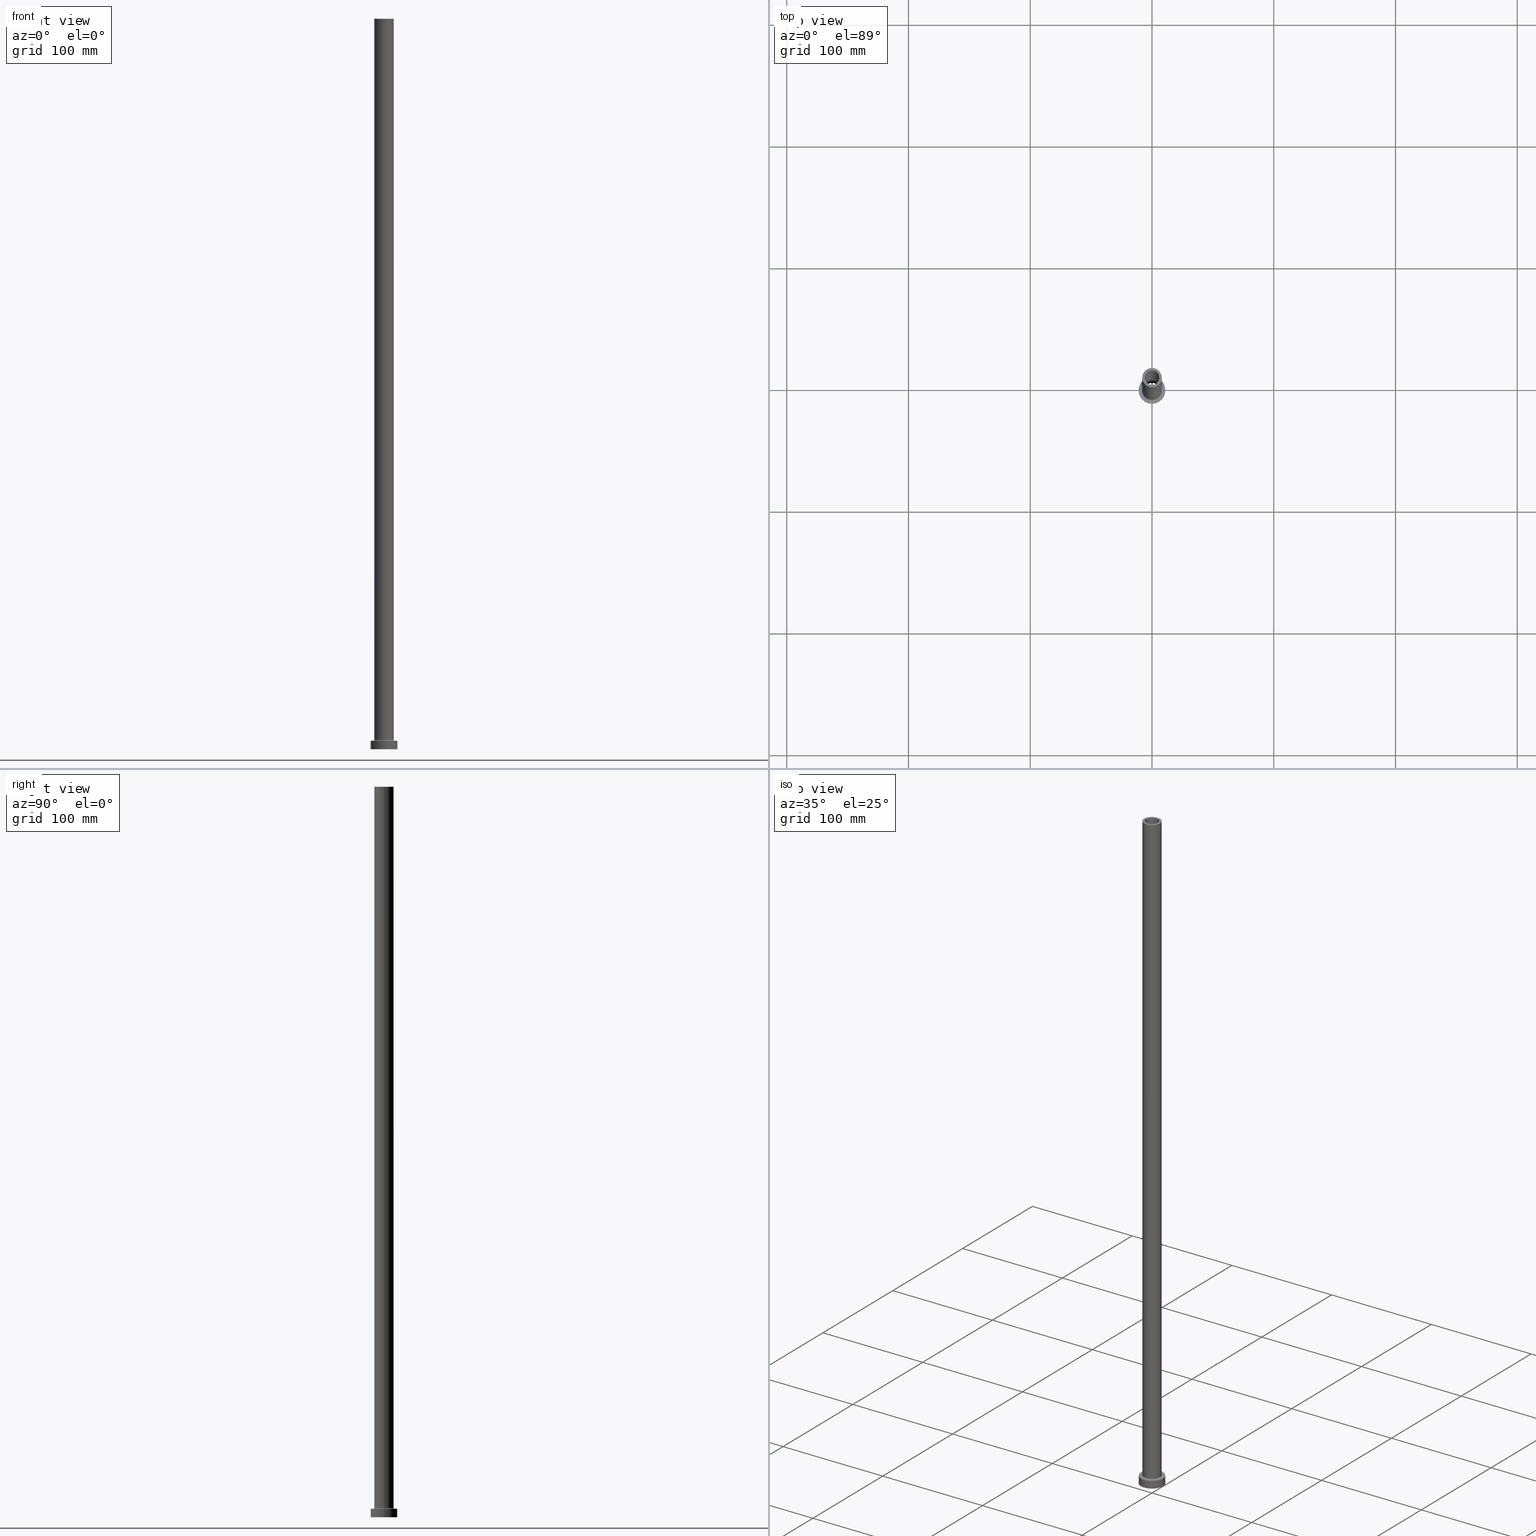
[diagram: canonical four-view strip — front | top / right | iso, engineering-drawing reading convention]
A machine part, canonical four-view strip (front | top / right | iso — engineering-drawing reading convention). The complete STEP part file that produces these views, byte-faithful:
ISO-10303-21;
HEADER;
FILE_DESCRIPTION (( 'STEP AP203' ),
    '1' );
FILE_NAME ('c568.STEP',
    '2023-02-13T09:05:37',
    ( '' ),
    ( '' ),
    'SwSTEP 2.0',
    'SolidWorks 2019',
    '' );
FILE_SCHEMA (( 'CONFIG_CONTROL_DESIGN' ));
ENDSEC;

DATA;
#1 = DIRECTION ( 'NONE',  ( -1.000000000000000000, 1.224646799147353207E-16, 0.000000000000000000 ) ) ;
#2 = FACE_OUTER_BOUND ( 'NONE', #274, .T. ) ;
#3 = DIRECTION ( 'NONE',  ( 1.000000000000000000, 0.000000000000000000, -0.000000000000000000 ) ) ;
#4 = VERTEX_POINT ( 'NONE', #361 ) ;
#5 = ORGANIZATION ( 'NEUR�EN�', 'NEUR�EN�', '' ) ;
#6 = CC_DESIGN_APPROVAL ( #16, ( #281 ) ) ;
#7 = VECTOR ( 'NONE', #116, 1000.000000000000000 ) ;
#8 = PERSON_AND_ORGANIZATION ( #287, #5 ) ;
#9 = ORIENTED_EDGE ( 'NONE', *, *, #111, .T. ) ;
#10 = DIRECTION ( 'NONE',  ( 1.000000000000000000, 0.000000000000000000, 0.000000000000000000 ) ) ;
#11 = DIRECTION ( 'NONE',  ( 0.000000000000000000, 0.000000000000000000, -1.000000000000000000 ) ) ;
#12 = COORDINATED_UNIVERSAL_TIME_OFFSET ( 1, 0, .AHEAD. ) ;
#13 = DIRECTION ( 'NONE',  ( 0.000000000000000000, 0.000000000000000000, -1.000000000000000000 ) ) ;
#14 = VECTOR ( 'NONE', #342, 1000.000000000000000 ) ;
#15 = UNCERTAINTY_MEASURE_WITH_UNIT (LENGTH_MEASURE( 1.000000000000000082E-05 ), #142, 'distance_accuracy_value', 'NONE');
#16 = APPROVAL ( #431, 'NEUR�EN�' ) ;
#17 = MANIFOLD_SOLID_BREP ( 'Odebrat vysunut�m4', #256 ) ;
#18 = CARTESIAN_POINT ( 'NONE',  ( -6.000000000000000888, 0.000000000000000000, 554.9999999999998863 ) ) ;
#19 = CIRCLE ( 'NONE', #211, 6.150000000000000355 ) ;
#20 = CARTESIAN_POINT ( 'NONE',  ( 0.000000000000000000, 0.000000000000000000, 7.000000000000000000 ) ) ;
#21 = APPROVAL_DATE_TIME ( #428, #16 ) ;
#22 = VERTEX_POINT ( 'NONE', #117 ) ;
#23 = AXIS2_PLACEMENT_3D ( 'NONE', #49, #201, #79 ) ;
#24 = ADVANCED_FACE ( 'NONE', ( #263 ), #392, .F. ) ;
#25 = ORIENTED_EDGE ( 'NONE', *, *, #398, .F. ) ;
#26 = DIRECTION ( 'NONE',  ( 1.000000000000000000, 0.000000000000000000, 0.000000000000000000 ) ) ;
#27 = LOCAL_TIME ( 10, 5, 37.00000000000000000, #12 ) ;
#28 = VECTOR ( 'NONE', #11, 1000.000000000000000 ) ;
#29 = EDGE_CURVE ( 'NONE', #4, #44, #319, .T. ) ;
#30 = VERTEX_POINT ( 'NONE', #359 ) ;
#31 = DIRECTION ( 'NONE',  ( -0.000000000000000000, -0.000000000000000000, -1.000000000000000000 ) ) ;
#32 = VERTEX_POINT ( 'NONE', #457 ) ;
#33 = ORIENTED_EDGE ( 'NONE', *, *, #216, .T. ) ;
#34 = TOROIDAL_SURFACE ( 'NONE', #321, 8.699999999999999289, 0.6999999999999999556 ) ;
#35 = DIRECTION ( 'NONE',  ( 0.000000000000000000, 0.000000000000000000, 1.000000000000000000 ) ) ;
#36 = CARTESIAN_POINT ( 'NONE',  ( -6.000000000000000888, 0.000000000000000000, 600.0000000000000000 ) ) ;
#37 = ORIENTED_EDGE ( 'NONE', *, *, #312, .T. ) ;
#38 = PLANE ( 'NONE',  #354 ) ;
#39 = ORIENTED_EDGE ( 'NONE', *, *, #379, .F. ) ;
#40 = LINE ( 'NONE', #120, #28 ) ;
#41 = APPROVAL_ROLE ( '' ) ;
#42 = CIRCLE ( 'NONE', #250, 6.000000000000000888 ) ;
#43 = ORIENTED_EDGE ( 'NONE', *, *, #182, .F. ) ;
#44 = VERTEX_POINT ( 'NONE', #395 ) ;
#45 = DIRECTION ( 'NONE',  ( 1.000000000000000000, 0.000000000000000000, 0.000000000000000000 ) ) ;
#46 = APPROVAL_STATUS ( 'not_yet_approved' ) ;
#47 = SECURITY_CLASSIFICATION ( '', '', #278 ) ;
#48 = CIRCLE ( 'NONE', #280, 8.000000000000000000 ) ;
#49 = CARTESIAN_POINT ( 'NONE',  ( 0.000000000000000000, 0.000000000000000000, 7.700000000000040146 ) ) ;
#50 = DIRECTION ( 'NONE',  ( 1.000000000000000000, 0.000000000000000000, 0.000000000000000000 ) ) ;
#51 = FACE_OUTER_BOUND ( 'NONE', #397, .T. ) ;
#52 = APPLICATION_PROTOCOL_DEFINITION ( 'international standard', 'config_control_design', 1994, #416 ) ;
#53 = EDGE_CURVE ( 'NONE', #30, #298, #19, .T. ) ;
#54 = CYLINDRICAL_SURFACE ( 'NONE', #437, 11.00000000000000000 ) ;
#55 = AXIS2_PLACEMENT_3D ( 'NONE', #151, #127, #277 ) ;
#56 = APPROVAL ( #291, 'NEUR�EN�' ) ;
#57 = DIRECTION ( 'NONE',  ( 1.000000000000000000, 0.000000000000000000, 0.000000000000000000 ) ) ;
#58 = ORIENTED_EDGE ( 'NONE', *, *, #209, .T. ) ;
#59 = CIRCLE ( 'NONE', #146, 6.150000000000000355 ) ;
#60 = CARTESIAN_POINT ( 'NONE',  ( 6.000000000000000888, 7.347880794884120722E-16, 554.9999999999998863 ) ) ;
#61 = DIRECTION ( 'NONE',  ( 0.000000000000000000, 0.000000000000000000, 1.000000000000000000 ) ) ;
#62 = EDGE_CURVE ( 'NONE', #355, #188, #449, .T. ) ;
#63 = ORIENTED_EDGE ( 'NONE', *, *, #379, .T. ) ;
#64 = DIRECTION ( 'NONE',  ( 0.000000000000000000, 0.000000000000000000, -1.000000000000000000 ) ) ;
#65 = AXIS2_PLACEMENT_3D ( 'NONE', #446, #349, #320 ) ;
#66 = ORIENTED_EDGE ( 'NONE', *, *, #450, .T. ) ;
#67 = PERSON_AND_ORGANIZATION_ROLE ( 'creator' ) ;
#68 = DIRECTION ( 'NONE',  ( 0.000000000000000000, 0.000000000000000000, 1.000000000000000000 ) ) ;
#69 = CARTESIAN_POINT ( 'NONE',  ( 0.000000000000000000, 0.000000000000000000, 0.000000000000000000 ) ) ;
#70 = VERTEX_POINT ( 'NONE', #306 ) ;
#71 = PLANE ( 'NONE',  #200 ) ;
#72 = EDGE_CURVE ( 'NONE', #188, #335, #393, .T. ) ;
#73 = CARTESIAN_POINT ( 'NONE',  ( 0.000000000000000000, 0.000000000000000000, 554.9999999999998863 ) ) ;
#74 = CARTESIAN_POINT ( 'NONE',  ( -11.00000000000000000, 0.000000000000000000, 7.000000000000000000 ) ) ;
#75 = ORIENTED_EDGE ( 'NONE', *, *, #353, .F. ) ;
#76 = CARTESIAN_POINT ( 'NONE',  ( 0.000000000000000000, 0.000000000000000000, 554.9999999999998863 ) ) ;
#77 = APPLICATION_CONTEXT ( 'configuration controlled 3d designs of mechanical parts and assemblies' ) ;
#78 = DESIGN_CONTEXT ( 'detailed design', #416, 'design' ) ;
#79 = DIRECTION ( 'NONE',  ( 1.000000000000000000, 0.000000000000000000, 0.000000000000000000 ) ) ;
#80 = VERTEX_POINT ( 'NONE', #18 ) ;
#81 = ORIENTED_EDGE ( 'NONE', *, *, #445, .F. ) ;
#82 = CARTESIAN_POINT ( 'NONE',  ( 0.000000000000000000, 0.000000000000000000, 7.700000000000040146 ) ) ;
#83 = ORIENTED_EDGE ( 'NONE', *, *, #398, .T. ) ;
#84 = ORIENTED_EDGE ( 'NONE', *, *, #182, .T. ) ;
#85 = AXIS2_PLACEMENT_3D ( 'NONE', #210, #99, #26 ) ;
#86 = APPROVAL_PERSON_ORGANIZATION ( #196, #16, #240 ) ;
#87 = TOROIDAL_SURFACE ( 'NONE', #288, 8.699999999999999289, 0.6999999999999999556 ) ;
#88 = ADVANCED_FACE ( 'NONE', ( #317 ), #247, .F. ) ;
#89 = CARTESIAN_POINT ( 'NONE',  ( 0.000000000000000000, 0.000000000000000000, 572.3948268171890277 ) ) ;
#90 = LOCAL_TIME ( 10, 5, 37.00000000000000000, #108 ) ;
#91 = CARTESIAN_POINT ( 'NONE',  ( -11.00000000000000000, 0.000000000000000000, 7.000000000000000000 ) ) ;
#92 = DIRECTION ( 'NONE',  ( 0.000000000000000000, 0.000000000000000000, 1.000000000000000000 ) ) ;
#93 = CC_DESIGN_DATE_AND_TIME_ASSIGNMENT ( #257, #452, ( #281 ) ) ;
#94 = CIRCLE ( 'NONE', #328, 8.699999999999999289 ) ;
#95 = DIRECTION ( 'NONE',  ( 0.000000000000000000, 0.000000000000000000, -1.000000000000000000 ) ) ;
#96 = DIRECTION ( 'NONE',  ( -0.000000000000000000, -0.000000000000000000, -1.000000000000000000 ) ) ;
#97 = CARTESIAN_POINT ( 'NONE',  ( 0.000000000000000000, 0.000000000000000000, 7.000000000000000000 ) ) ;
#98 = AXIS2_PLACEMENT_3D ( 'NONE', #346, #123, #170 ) ;
#99 = DIRECTION ( 'NONE',  ( -0.000000000000000000, -0.000000000000000000, -1.000000000000000000 ) ) ;
#100 = EDGE_CURVE ( 'NONE', #307, #44, #386, .T. ) ;
#101 =( NAMED_UNIT ( * ) PLANE_ANGLE_UNIT ( ) SI_UNIT ( $, .RADIAN. ) );
#102 = ORIENTED_EDGE ( 'NONE', *, *, #72, .F. ) ;
#103 = VECTOR ( 'NONE', #140, 1000.000000000000000 ) ;
#104 = CALENDAR_DATE ( 2023, 13, 2 ) ;
#105 = FACE_OUTER_BOUND ( 'NONE', #313, .T. ) ;
#106 = ORIENTED_EDGE ( 'NONE', *, *, #323, .T. ) ;
#107 = EDGE_LOOP ( 'NONE', ( #453, #338 ) ) ;
#108 = COORDINATED_UNIVERSAL_TIME_OFFSET ( 1, 0, .AHEAD. ) ;
#109 = APPROVAL_DATE_TIME ( #327, #370 ) ;
#110 = ORIENTED_EDGE ( 'NONE', *, *, #304, .T. ) ;
#111 = EDGE_CURVE ( 'NONE', #70, #22, #42, .T. ) ;
#112 = ORIENTED_EDGE ( 'NONE', *, *, #312, .F. ) ;
#113 = ORIENTED_EDGE ( 'NONE', *, *, #366, .T. ) ;
#114 = DIRECTION ( 'NONE',  ( 1.000000000000000000, 0.000000000000000000, 0.000000000000000000 ) ) ;
#115 = EDGE_LOOP ( 'NONE', ( #226, #405, #309, #39 ) ) ;
#116 = DIRECTION ( 'NONE',  ( -0.000000000000000000, -0.000000000000000000, -1.000000000000000000 ) ) ;
#117 = CARTESIAN_POINT ( 'NONE',  ( 6.000000000000000888, 7.347880794884120722E-16, 600.0000000000000000 ) ) ;
#118 = EDGE_LOOP ( 'NONE', ( #394, #75 ) ) ;
#119 = PLANE ( 'NONE',  #456 ) ;
#120 = CARTESIAN_POINT ( 'NONE',  ( -6.150000000000000355, 0.000000000000000000, 572.3948268171890277 ) ) ;
#121 = PERSON_AND_ORGANIZATION ( #287, #5 ) ;
#122 = ORIENTED_EDGE ( 'NONE', *, *, #304, .F. ) ;
#123 = DIRECTION ( 'NONE',  ( 0.000000000000000000, 0.000000000000000000, 1.000000000000000000 ) ) ;
#124 = CARTESIAN_POINT ( 'NONE',  ( 8.000000000000000000, 9.797174393178825657E-16, 600.0000000000000000 ) ) ;
#125 = ORIENTED_EDGE ( 'NONE', *, *, #29, .F. ) ;
#126 = VERTEX_POINT ( 'NONE', #218 ) ;
#127 = DIRECTION ( 'NONE',  ( 0.000000000000000000, 0.000000000000000000, 1.000000000000000000 ) ) ;
#128 = PERSON_AND_ORGANIZATION_ROLE ( 'design_supplier' ) ;
#129 =( GEOMETRIC_REPRESENTATION_CONTEXT ( 3 ) GLOBAL_UNCERTAINTY_ASSIGNED_CONTEXT ( ( #15 ) ) GLOBAL_UNIT_ASSIGNED_CONTEXT ( ( #142, #101, #262 ) ) REPRESENTATION_CONTEXT ( 'NONE', 'WORKASPACE' ) );
#130 = PERSON_AND_ORGANIZATION_ROLE ( 'creator' ) ;
#131 = DIRECTION ( 'NONE',  ( 1.000000000000000000, 0.000000000000000000, 0.000000000000000000 ) ) ;
#132 = EDGE_CURVE ( 'NONE', #22, #341, #173, .T. ) ;
#133 = CARTESIAN_POINT ( 'NONE',  ( 0.000000000000000000, 0.000000000000000000, 600.0000000000000000 ) ) ;
#134 = DIRECTION ( 'NONE',  ( -1.000000000000000000, 0.000000000000000000, 0.000000000000000000 ) ) ;
#135 = CC_DESIGN_APPROVAL ( #370, ( #47 ) ) ;
#136 = AXIS2_PLACEMENT_3D ( 'NONE', #414, #410, #381 ) ;
#137 = ADVANCED_FACE ( 'NONE', ( #441 ), #348, .T. ) ;
#138 = CYLINDRICAL_SURFACE ( 'NONE', #65, 6.000000000000000888 ) ;
#139 = FACE_OUTER_BOUND ( 'NONE', #195, .T. ) ;
#140 = DIRECTION ( 'NONE',  ( 0.000000000000000000, 0.000000000000000000, -1.000000000000000000 ) ) ;
#141 = FACE_BOUND ( 'NONE', #421, .T. ) ;
#142 =( LENGTH_UNIT ( ) NAMED_UNIT ( * ) SI_UNIT ( .MILLI., .METRE. ) );
#143 = FACE_BOUND ( 'NONE', #118, .T. ) ;
#144 = CALENDAR_DATE ( 2023, 13, 2 ) ;
#145 = DIRECTION ( 'NONE',  ( 1.000000000000000000, 0.000000000000000000, 0.000000000000000000 ) ) ;
#146 = AXIS2_PLACEMENT_3D ( 'NONE', #447, #385, #347 ) ;
#147 = VECTOR ( 'NONE', #13, 1000.000000000000000 ) ;
#148 = PERSON_AND_ORGANIZATION ( #287, #5 ) ;
#149 = ORIENTED_EDGE ( 'NONE', *, *, #245, .T. ) ;
#150 = DIRECTION ( 'NONE',  ( 1.000000000000000000, 0.000000000000000000, 0.000000000000000000 ) ) ;
#151 = CARTESIAN_POINT ( 'NONE',  ( 0.000000000000000000, 0.000000000000000000, 7.000000000000000000 ) ) ;
#152 = DIRECTION ( 'NONE',  ( -0.000000000000000000, -0.000000000000000000, -1.000000000000000000 ) ) ;
#153 = CARTESIAN_POINT ( 'NONE',  ( 0.000000000000000000, 0.000000000000000000, 572.3948268171890277 ) ) ;
#154 = EDGE_LOOP ( 'NONE', ( #149, #106 ) ) ;
#155 = DIRECTION ( 'NONE',  ( 0.000000000000000000, 0.000000000000000000, 1.000000000000000000 ) ) ;
#156 = EDGE_CURVE ( 'NONE', #335, #188, #94, .T. ) ;
#157 = COORDINATED_UNIVERSAL_TIME_OFFSET ( 1, 0, .AHEAD. ) ;
#158 = FACE_BOUND ( 'NONE', #174, .T. ) ;
#159 = AXIS2_PLACEMENT_3D ( 'NONE', #89, #336, #246 ) ;
#160 = FACE_OUTER_BOUND ( 'NONE', #235, .T. ) ;
#161 = ORIENTED_EDGE ( 'NONE', *, *, #425, .F. ) ;
#162 = CARTESIAN_POINT ( 'NONE',  ( 0.000000000000000000, 0.000000000000000000, 600.0000000000000000 ) ) ;
#163 = ORIENTED_EDGE ( 'NONE', *, *, #167, .F. ) ;
#164 = CARTESIAN_POINT ( 'NONE',  ( 0.000000000000000000, 0.000000000000000000, 7.700000000000040146 ) ) ;
#165 = CALENDAR_DATE ( 2023, 13, 2 ) ;
#166 = AXIS2_PLACEMENT_3D ( 'NONE', #284, #152, #305 ) ;
#167 = EDGE_CURVE ( 'NONE', #80, #341, #254, .T. ) ;
#168 = CC_DESIGN_SECURITY_CLASSIFICATION ( #47, ( #279 ) ) ;
#169 = AXIS2_PLACEMENT_3D ( 'NONE', #293, #303, #64 ) ;
#170 = DIRECTION ( 'NONE',  ( 1.000000000000000000, 0.000000000000000000, 0.000000000000000000 ) ) ;
#171 = DIRECTION ( 'NONE',  ( -0.000000000000000000, -0.000000000000000000, -1.000000000000000000 ) ) ;
#172 = ADVANCED_FACE ( 'NONE', ( #143, #105 ), #38, .F. ) ;
#173 = LINE ( 'NONE', #448, #103 ) ;
#174 = EDGE_LOOP ( 'NONE', ( #390, #302 ) ) ;
#175 = CARTESIAN_POINT ( 'NONE',  ( 0.000000000000000000, 0.000000000000000000, 600.0000000000000000 ) ) ;
#176 = ADVANCED_FACE ( 'NONE', ( #389 ), #440, .F. ) ;
#177 = FACE_OUTER_BOUND ( 'NONE', #455, .T. ) ;
#178 = FACE_BOUND ( 'NONE', #183, .T. ) ;
#179 = CC_DESIGN_PERSON_AND_ORGANIZATION_ASSIGNMENT ( #121, #128, ( #279 ) ) ;
#180 = ORIENTED_EDGE ( 'NONE', *, *, #255, .T. ) ;
#181 = DIRECTION ( 'NONE',  ( 1.000000000000000000, 0.000000000000000000, 0.000000000000000000 ) ) ;
#182 = EDGE_CURVE ( 'NONE', #44, #4, #454, .T. ) ;
#183 = EDGE_LOOP ( 'NONE', ( #331, #234 ) ) ;
#184 = AXIS2_PLACEMENT_3D ( 'NONE', #372, #310, #50 ) ;
#185 = DIRECTION ( 'NONE',  ( 0.000000000000000000, 0.000000000000000000, 1.000000000000000000 ) ) ;
#186 = ORIENTED_EDGE ( 'NONE', *, *, #53, .T. ) ;
#187 = DIRECTION ( 'NONE',  ( -1.000000000000000000, 0.000000000000000000, 0.000000000000000000 ) ) ;
#188 = VERTEX_POINT ( 'NONE', #411 ) ;
#189 = DIRECTION ( 'NONE',  ( 1.000000000000000000, 0.000000000000000000, -0.000000000000000000 ) ) ;
#190 = DIRECTION ( 'NONE',  ( 1.000000000000000000, 0.000000000000000000, 0.000000000000000000 ) ) ;
#191 = VERTEX_POINT ( 'NONE', #239 ) ;
#192 = CARTESIAN_POINT ( 'NONE',  ( 8.699999999999999289, 0.000000000000000000, 7.000000000000020428 ) ) ;
#193 = DIRECTION ( 'NONE',  ( 0.000000000000000000, 0.000000000000000000, -1.000000000000000000 ) ) ;
#194 = DIRECTION ( 'NONE',  ( -0.000000000000000000, -0.000000000000000000, -1.000000000000000000 ) ) ;
#195 = EDGE_LOOP ( 'NONE', ( #221, #419, #232, #220 ) ) ;
#196 = PERSON_AND_ORGANIZATION ( #287, #5 ) ;
#197 = ORIENTED_EDGE ( 'NONE', *, *, #245, .F. ) ;
#198 = CYLINDRICAL_SURFACE ( 'NONE', #351, 11.00000000000000000 ) ;
#199 = APPROVAL_PERSON_ORGANIZATION ( #369, #370, #41 ) ;
#200 = AXIS2_PLACEMENT_3D ( 'NONE', #97, #155, #189 ) ;
#201 = DIRECTION ( 'NONE',  ( 0.000000000000000000, 0.000000000000000000, 1.000000000000000000 ) ) ;
#202 = APPLICATION_PROTOCOL_DEFINITION ( 'international standard', 'config_control_design', 1994, #77 ) ;
#203 = DIRECTION ( 'NONE',  ( 0.000000000000000000, 0.000000000000000000, 1.000000000000000000 ) ) ;
#204 = DIRECTION ( 'NONE',  ( -0.000000000000000000, -0.000000000000000000, -1.000000000000000000 ) ) ;
#205 = EDGE_CURVE ( 'NONE', #22, #70, #219, .T. ) ;
#206 = DIRECTION ( 'NONE',  ( 0.000000000000000000, 0.000000000000000000, 1.000000000000000000 ) ) ;
#207 = DIRECTION ( 'NONE',  ( 1.000000000000000000, 0.000000000000000000, 0.000000000000000000 ) ) ;
#208 = DIRECTION ( 'NONE',  ( 0.000000000000000000, 0.000000000000000000, 1.000000000000000000 ) ) ;
#209 = EDGE_CURVE ( 'NONE', #429, #426, #345, .T. ) ;
#210 = CARTESIAN_POINT ( 'NONE',  ( 0.000000000000000000, 0.000000000000000000, 0.000000000000000000 ) ) ;
#211 = AXIS2_PLACEMENT_3D ( 'NONE', #73, #35, #190 ) ;
#212 = CARTESIAN_POINT ( 'NONE',  ( 0.000000000000000000, 0.000000000000000000, 600.0000000000000000 ) ) ;
#213 = VECTOR ( 'NONE', #332, 1000.000000000000000 ) ;
#214 = CIRCLE ( 'NONE', #55, 11.00000000000000000 ) ;
#215 = FACE_OUTER_BOUND ( 'NONE', #154, .T. ) ;
#216 = EDGE_CURVE ( 'NONE', #426, #355, #297, .T. ) ;
#217 = DIRECTION ( 'NONE',  ( 1.000000000000000000, 0.000000000000000000, -0.000000000000000000 ) ) ;
#218 = CARTESIAN_POINT ( 'NONE',  ( 11.00000000000000000, 1.347111479062088405E-15, 7.000000000000000000 ) ) ;
#219 = CIRCLE ( 'NONE', #420, 6.000000000000000888 ) ;
#220 = ORIENTED_EDGE ( 'NONE', *, *, #100, .F. ) ;
#221 = ORIENTED_EDGE ( 'NONE', *, *, #323, .F. ) ;
#222 = LINE ( 'NONE', #299, #7 ) ;
#223 = EDGE_CURVE ( 'NONE', #126, #4, #382, .T. ) ;
#224 = DIRECTION ( 'NONE',  ( 0.000000000000000000, 0.000000000000000000, 1.000000000000000000 ) ) ;
#225 = ORIENTED_EDGE ( 'NONE', *, *, #216, .F. ) ;
#226 = ORIENTED_EDGE ( 'NONE', *, *, #231, .F. ) ;
#227 = ORIENTED_EDGE ( 'NONE', *, *, #62, .F. ) ;
#228 = EDGE_LOOP ( 'NONE', ( #363, #197, #237, #84 ) ) ;
#229 = ORIENTED_EDGE ( 'NONE', *, *, #350, .F. ) ;
#230 = LINE ( 'NONE', #36, #147 ) ;
#231 = EDGE_CURVE ( 'NONE', #355, #426, #316, .T. ) ;
#232 = ORIENTED_EDGE ( 'NONE', *, *, #29, .T. ) ;
#233 = CARTESIAN_POINT ( 'NONE',  ( 6.150000000000000355, 7.531577814756222064E-16, 572.3948268171890277 ) ) ;
#234 = ORIENTED_EDGE ( 'NONE', *, *, #72, .T. ) ;
#235 = EDGE_LOOP ( 'NONE', ( #227, #225, #63, #102 ) ) ;
#236 = CARTESIAN_POINT ( 'NONE',  ( -6.150000000000000355, 0.000000000000000000, 0.000000000000000000 ) ) ;
#237 = ORIENTED_EDGE ( 'NONE', *, *, #100, .T. ) ;
#238 = CARTESIAN_POINT ( 'NONE',  ( 0.000000000000000000, 0.000000000000000000, 600.0000000000000000 ) ) ;
#239 = CARTESIAN_POINT ( 'NONE',  ( 6.150000000000000355, 7.531577814756222064E-16, 0.000000000000000000 ) ) ;
#240 = APPROVAL_ROLE ( '' ) ;
#241 = VERTEX_POINT ( 'NONE', #236 ) ;
#242 = SHAPE_DEFINITION_REPRESENTATION ( #318, #461 ) ;
#243 = CIRCLE ( 'NONE', #85, 6.150000000000000355 ) ;
#244 = PERSON_AND_ORGANIZATION ( #287, #5 ) ;
#245 = EDGE_CURVE ( 'NONE', #307, #126, #214, .T. ) ;
#246 = DIRECTION ( 'NONE',  ( -1.000000000000000000, 0.000000000000000000, 0.000000000000000000 ) ) ;
#247 = CYLINDRICAL_SURFACE ( 'NONE', #324, 6.000000000000000888 ) ;
#248 = CC_DESIGN_PERSON_AND_ORGANIZATION_ASSIGNMENT ( #285, #130, ( #281 ) ) ;
#249 = CIRCLE ( 'NONE', #136, 11.00000000000000000 ) ;
#250 = AXIS2_PLACEMENT_3D ( 'NONE', #383, #61, #57 ) ;
#251 = DIRECTION ( 'NONE',  ( 1.000000000000000000, 0.000000000000000000, 0.000000000000000000 ) ) ;
#252 = DIRECTION ( 'NONE',  ( -1.000000000000000000, 0.000000000000000000, 0.000000000000000000 ) ) ;
#253 = AXIS2_PLACEMENT_3D ( 'NONE', #164, #92, #251 ) ;
#254 = CIRCLE ( 'NONE', #406, 6.000000000000000888 ) ;
#255 = EDGE_CURVE ( 'NONE', #30, #241, #40, .T. ) ;
#256 = CLOSED_SHELL ( 'NONE', ( #358, #176, #286, #137, #376, #290, #325, #172, #439, #275, #409, #24, #337, #88 ) ) ;
#257 = DATE_AND_TIME ( #356, #27 ) ;
#258 = AXIS2_PLACEMENT_3D ( 'NONE', #330, #333, #1 ) ;
#259 = CARTESIAN_POINT ( 'NONE',  ( 0.000000000000000000, 0.000000000000000000, 0.000000000000000000 ) ) ;
#260 = CC_DESIGN_APPROVAL ( #56, ( #279 ) ) ;
#261 = AXIS2_PLACEMENT_3D ( 'NONE', #238, #402, #458 ) ;
#262 =( NAMED_UNIT ( * ) SI_UNIT ( $, .STERADIAN. ) SOLID_ANGLE_UNIT ( ) );
#263 = FACE_OUTER_BOUND ( 'NONE', #401, .T. ) ;
#264 = DIRECTION ( 'NONE',  ( -1.000000000000000000, 0.000000000000000000, 0.000000000000000000 ) ) ;
#265 = ORIENTED_EDGE ( 'NONE', *, *, #255, .F. ) ;
#266 = DIRECTION ( 'NONE',  ( -0.000000000000000000, -0.000000000000000000, -1.000000000000000000 ) ) ;
#267 = LINE ( 'NONE', #233, #213 ) ;
#268 = ORIENTED_EDGE ( 'NONE', *, *, #209, .F. ) ;
#269 = CARTESIAN_POINT ( 'NONE',  ( 8.000000000000000000, 9.797174393178825657E-16, 7.700000000000040146 ) ) ;
#270 = DIRECTION ( 'NONE',  ( 1.000000000000000000, 0.000000000000000000, 0.000000000000000000 ) ) ;
#271 = EDGE_LOOP ( 'NONE', ( #122, #58, #33, #25 ) ) ;
#272 = CARTESIAN_POINT ( 'NONE',  ( 8.000000000000000000, 9.797174393178825657E-16, 600.0000000000000000 ) ) ;
#273 = AXIS2_PLACEMENT_3D ( 'NONE', #311, #204, #131 ) ;
#274 = EDGE_LOOP ( 'NONE', ( #459, #110 ) ) ;
#275 = ADVANCED_FACE ( 'NONE', ( #158, #2 ), #301, .T. ) ;
#276 = CIRCLE ( 'NONE', #415, 6.150000000000000355 ) ;
#277 = DIRECTION ( 'NONE',  ( 1.000000000000000000, 0.000000000000000000, 0.000000000000000000 ) ) ;
#278 = SECURITY_CLASSIFICATION_LEVEL ( 'unclassified' ) ;
#279 = PRODUCT_DEFINITION_FORMATION_WITH_SPECIFIED_SOURCE ( 'LIBOVOLN�', '', #377, .NOT_KNOWN. ) ;
#280 = AXIS2_PLACEMENT_3D ( 'NONE', #175, #378, #413 ) ;
#281 = PRODUCT_DEFINITION ( 'NEZN�M�', '', #279, #78 ) ;
#282 = DIRECTION ( 'NONE',  ( -0.000000000000000000, -0.000000000000000000, -1.000000000000000000 ) ) ;
#283 = LOCAL_TIME ( 10, 5, 37.00000000000000000, #391 ) ;
#284 = CARTESIAN_POINT ( 'NONE',  ( 0.000000000000000000, 0.000000000000000000, 600.0000000000000000 ) ) ;
#285 = PERSON_AND_ORGANIZATION ( #287, #5 ) ;
#286 = ADVANCED_FACE ( 'NONE', ( #423 ), #87, .F. ) ;
#287 = PERSON ( 'NEUR�EN�', 'NEUR�EN�', 'NEUR�EN�', ('NEUR�EN�'), ('NEUR�EN�'), ('NEUR�EN�') ) ;
#288 = AXIS2_PLACEMENT_3D ( 'NONE', #82, #368, #45 ) ;
#289 = FACE_OUTER_BOUND ( 'NONE', #107, .T. ) ;
#290 = ADVANCED_FACE ( 'NONE', ( #364 ), #198, .T. ) ;
#291 = APPROVAL_STATUS ( 'not_yet_approved' ) ;
#292 = PERSON_AND_ORGANIZATION ( #287, #5 ) ;
#293 = CARTESIAN_POINT ( 'NONE',  ( 8.699999999999999289, 0.000000000000000000, 7.700000000000040146 ) ) ;
#294 = ORIENTED_EDGE ( 'NONE', *, *, #167, .T. ) ;
#295 = CALENDAR_DATE ( 2023, 13, 2 ) ;
#296 = APPROVAL_PERSON_ORGANIZATION ( #148, #56, #322 ) ;
#297 = CIRCLE ( 'NONE', #253, 8.000000000000000000 ) ;
#298 = VERTEX_POINT ( 'NONE', #340 ) ;
#299 = CARTESIAN_POINT ( 'NONE',  ( -8.000000000000000000, 0.000000000000000000, 600.0000000000000000 ) ) ;
#300 = ORIENTED_EDGE ( 'NONE', *, *, #445, .T. ) ;
#301 = PLANE ( 'NONE',  #261 ) ;
#302 = ORIENTED_EDGE ( 'NONE', *, *, #205, .F. ) ;
#303 = DIRECTION ( 'NONE',  ( 0.000000000000000000, -1.000000000000000000, 0.000000000000000000 ) ) ;
#304 = EDGE_CURVE ( 'NONE', #429, #32, #388, .T. ) ;
#305 = DIRECTION ( 'NONE',  ( -1.000000000000000000, 0.000000000000000000, 0.000000000000000000 ) ) ;
#306 = CARTESIAN_POINT ( 'NONE',  ( -6.000000000000000888, 0.000000000000000000, 600.0000000000000000 ) ) ;
#307 = VERTEX_POINT ( 'NONE', #74 ) ;
#308 = CARTESIAN_POINT ( 'NONE',  ( 11.00000000000000000, 1.347111479062088405E-15, 7.000000000000000000 ) ) ;
#309 = ORIENTED_EDGE ( 'NONE', *, *, #156, .F. ) ;
#310 = DIRECTION ( 'NONE',  ( 0.000000000000000000, 0.000000000000000000, 1.000000000000000000 ) ) ;
#311 = CARTESIAN_POINT ( 'NONE',  ( 0.000000000000000000, 0.000000000000000000, 7.000000000000000000 ) ) ;
#312 = EDGE_CURVE ( 'NONE', #70, #80, #230, .T. ) ;
#313 = EDGE_LOOP ( 'NONE', ( #43, #125 ) ) ;
#314 = EDGE_LOOP ( 'NONE', ( #186, #300, #424, #265 ) ) ;
#315 = PRODUCT_RELATED_PRODUCT_CATEGORY ( 'detail', '', ( #377 ) ) ;
#316 = CIRCLE ( 'NONE', #23, 8.000000000000000000 ) ;
#317 = FACE_OUTER_BOUND ( 'NONE', #352, .T. ) ;
#318 = PRODUCT_DEFINITION_SHAPE ( 'NONE', 'NONE',  #281 ) ;
#319 = CIRCLE ( 'NONE', #418, 11.00000000000000000 ) ;
#320 = DIRECTION ( 'NONE',  ( -1.000000000000000000, 0.000000000000000000, 0.000000000000000000 ) ) ;
#321 = AXIS2_PLACEMENT_3D ( 'NONE', #400, #203, #207 ) ;
#322 = APPROVAL_ROLE ( '' ) ;
#323 = EDGE_CURVE ( 'NONE', #126, #307, #249, .T. ) ;
#324 = AXIS2_PLACEMENT_3D ( 'NONE', #133, #95, #252 ) ;
#325 = ADVANCED_FACE ( 'NONE', ( #178, #215 ), #71, .T. ) ;
#326 = ORIENTED_EDGE ( 'NONE', *, *, #132, .T. ) ;
#327 = DATE_AND_TIME ( #295, #442 ) ;
#328 = AXIS2_PLACEMENT_3D ( 'NONE', #422, #266, #145 ) ;
#329 = DIRECTION ( 'NONE',  ( 1.000000000000000000, 0.000000000000000000, 0.000000000000000000 ) ) ;
#330 = CARTESIAN_POINT ( 'NONE',  ( -8.699999999999999289, 1.065442715258197248E-15, 7.700000000000040146 ) ) ;
#331 = ORIENTED_EDGE ( 'NONE', *, *, #156, .T. ) ;
#332 = DIRECTION ( 'NONE',  ( 0.000000000000000000, 0.000000000000000000, -1.000000000000000000 ) ) ;
#333 = DIRECTION ( 'NONE',  ( 1.224646799147353207E-16, 1.000000000000000000, -0.000000000000000000 ) ) ;
#334 = COORDINATED_UNIVERSAL_TIME_OFFSET ( 1, 0, .AHEAD. ) ;
#335 = VERTEX_POINT ( 'NONE', #192 ) ;
#336 = DIRECTION ( 'NONE',  ( 0.000000000000000000, 0.000000000000000000, -1.000000000000000000 ) ) ;
#337 = ADVANCED_FACE ( 'NONE', ( #141, #289 ), #119, .F. ) ;
#338 = ORIENTED_EDGE ( 'NONE', *, *, #366, .F. ) ;
#339 = CIRCLE ( 'NONE', #98, 6.000000000000000888 ) ;
#340 = CARTESIAN_POINT ( 'NONE',  ( 6.150000000000000355, 7.531577814756222064E-16, 554.9999999999998863 ) ) ;
#341 = VERTEX_POINT ( 'NONE', #60 ) ;
#342 = DIRECTION ( 'NONE',  ( -0.000000000000000000, -0.000000000000000000, -1.000000000000000000 ) ) ;
#343 = MECHANICAL_CONTEXT ( 'NONE', #77, 'mechanical' ) ;
#344 = CYLINDRICAL_SURFACE ( 'NONE', #360, 8.000000000000000000 ) ;
#345 = LINE ( 'NONE', #124, #14 ) ;
#346 = CARTESIAN_POINT ( 'NONE',  ( 0.000000000000000000, 0.000000000000000000, 554.9999999999998863 ) ) ;
#347 = DIRECTION ( 'NONE',  ( 1.000000000000000000, 0.000000000000000000, 0.000000000000000000 ) ) ;
#348 = CYLINDRICAL_SURFACE ( 'NONE', #166, 8.000000000000000000 ) ;
#349 = DIRECTION ( 'NONE',  ( 0.000000000000000000, 0.000000000000000000, -1.000000000000000000 ) ) ;
#350 = EDGE_CURVE ( 'NONE', #32, #429, #48, .T. ) ;
#351 = AXIS2_PLACEMENT_3D ( 'NONE', #435, #374, #187 ) ;
#352 = EDGE_LOOP ( 'NONE', ( #404, #396, #37, #161 ) ) ;
#353 = EDGE_CURVE ( 'NONE', #191, #241, #243, .T. ) ;
#354 = AXIS2_PLACEMENT_3D ( 'NONE', #259, #224, #3 ) ;
#355 = VERTEX_POINT ( 'NONE', #443 ) ;
#356 = CALENDAR_DATE ( 2023, 13, 2 ) ;
#357 = CARTESIAN_POINT ( 'NONE',  ( 0.000000000000000000, 0.000000000000000000, 0.000000000000000000 ) ) ;
#358 = ADVANCED_FACE ( 'NONE', ( #177 ), #138, .F. ) ;
#359 = CARTESIAN_POINT ( 'NONE',  ( -6.150000000000000355, 0.000000000000000000, 554.9999999999998863 ) ) ;
#360 = AXIS2_PLACEMENT_3D ( 'NONE', #212, #282, #444 ) ;
#361 = CARTESIAN_POINT ( 'NONE',  ( 11.00000000000000000, 1.347111479062088405E-15, 0.000000000000000000 ) ) ;
#362 = CC_DESIGN_PERSON_AND_ORGANIZATION_ASSIGNMENT ( #8, #365, ( #47 ) ) ;
#363 = ORIENTED_EDGE ( 'NONE', *, *, #223, .F. ) ;
#364 = FACE_OUTER_BOUND ( 'NONE', #228, .T. ) ;
#365 = PERSON_AND_ORGANIZATION_ROLE ( 'classification_officer' ) ;
#366 = EDGE_CURVE ( 'NONE', #298, #30, #59, .T. ) ;
#367 = AXIS2_PLACEMENT_3D ( 'NONE', #153, #193, #264 ) ;
#368 = DIRECTION ( 'NONE',  ( 0.000000000000000000, 0.000000000000000000, 1.000000000000000000 ) ) ;
#369 = PERSON_AND_ORGANIZATION ( #287, #5 ) ;
#370 = APPROVAL ( #46, 'NEUR�EN�' ) ;
#371 = AXIS2_PLACEMENT_3D ( 'NONE', #162, #434, #114 ) ;
#372 = CARTESIAN_POINT ( 'NONE',  ( 0.000000000000000000, 0.000000000000000000, 0.000000000000000000 ) ) ;
#373 = PERSON_AND_ORGANIZATION_ROLE ( 'design_owner' ) ;
#374 = DIRECTION ( 'NONE',  ( -0.000000000000000000, -0.000000000000000000, -1.000000000000000000 ) ) ;
#375 = CARTESIAN_POINT ( 'NONE',  ( 0.000000000000000000, 0.000000000000000000, 0.000000000000000000 ) ) ;
#376 = ADVANCED_FACE ( 'NONE', ( #139 ), #54, .T. ) ;
#377 = PRODUCT ( 'c568', 'c568', '', ( #343 ) ) ;
#378 = DIRECTION ( 'NONE',  ( 0.000000000000000000, 0.000000000000000000, 1.000000000000000000 ) ) ;
#379 = EDGE_CURVE ( 'NONE', #426, #335, #438, .T. ) ;
#380 = DIRECTION ( 'NONE',  ( 0.000000000000000000, 0.000000000000000000, 1.000000000000000000 ) ) ;
#381 = DIRECTION ( 'NONE',  ( 1.000000000000000000, 0.000000000000000000, 0.000000000000000000 ) ) ;
#382 = LINE ( 'NONE', #308, #427 ) ;
#383 = CARTESIAN_POINT ( 'NONE',  ( 0.000000000000000000, 0.000000000000000000, 600.0000000000000000 ) ) ;
#384 = CC_DESIGN_PERSON_AND_ORGANIZATION_ASSIGNMENT ( #244, #373, ( #377 ) ) ;
#385 = DIRECTION ( 'NONE',  ( 0.000000000000000000, 0.000000000000000000, 1.000000000000000000 ) ) ;
#386 = LINE ( 'NONE', #91, #387 ) ;
#387 = VECTOR ( 'NONE', #96, 1000.000000000000000 ) ;
#388 = CIRCLE ( 'NONE', #371, 8.000000000000000000 ) ;
#389 = FACE_OUTER_BOUND ( 'NONE', #314, .T. ) ;
#390 = ORIENTED_EDGE ( 'NONE', *, *, #111, .F. ) ;
#391 = COORDINATED_UNIVERSAL_TIME_OFFSET ( 1, 0, .AHEAD. ) ;
#392 = CYLINDRICAL_SURFACE ( 'NONE', #367, 6.150000000000000355 ) ;
#393 = CIRCLE ( 'NONE', #273, 8.699999999999999289 ) ;
#394 = ORIENTED_EDGE ( 'NONE', *, *, #450, .F. ) ;
#395 = CARTESIAN_POINT ( 'NONE',  ( -11.00000000000000000, 0.000000000000000000, 0.000000000000000000 ) ) ;
#396 = ORIENTED_EDGE ( 'NONE', *, *, #205, .T. ) ;
#397 = EDGE_LOOP ( 'NONE', ( #268, #229, #83, #433 ) ) ;
#398 = EDGE_CURVE ( 'NONE', #32, #355, #222, .T. ) ;
#399 = ORIENTED_EDGE ( 'NONE', *, *, #425, .T. ) ;
#400 = CARTESIAN_POINT ( 'NONE',  ( 0.000000000000000000, 0.000000000000000000, 7.700000000000040146 ) ) ;
#401 = EDGE_LOOP ( 'NONE', ( #81, #113, #180, #66 ) ) ;
#402 = DIRECTION ( 'NONE',  ( 0.000000000000000000, 0.000000000000000000, 1.000000000000000000 ) ) ;
#403 = CC_DESIGN_DATE_AND_TIME_ASSIGNMENT ( #451, #408, ( #47 ) ) ;
#404 = ORIENTED_EDGE ( 'NONE', *, *, #132, .F. ) ;
#405 = ORIENTED_EDGE ( 'NONE', *, *, #62, .T. ) ;
#406 = AXIS2_PLACEMENT_3D ( 'NONE', #76, #68, #181 ) ;
#407 = LOCAL_TIME ( 10, 5, 37.00000000000000000, #157 ) ;
#408 = DATE_TIME_ROLE ( 'classification_date' ) ;
#409 = ADVANCED_FACE ( 'NONE', ( #160 ), #34, .F. ) ;
#410 = DIRECTION ( 'NONE',  ( 0.000000000000000000, 0.000000000000000000, 1.000000000000000000 ) ) ;
#411 = CARTESIAN_POINT ( 'NONE',  ( -8.699999999999999289, 1.065442715258197248E-15, 7.000000000000020428 ) ) ;
#412 = AXIS2_PLACEMENT_3D ( 'NONE', #375, #208, #270 ) ;
#413 = DIRECTION ( 'NONE',  ( 1.000000000000000000, 0.000000000000000000, 0.000000000000000000 ) ) ;
#414 = CARTESIAN_POINT ( 'NONE',  ( 0.000000000000000000, 0.000000000000000000, 7.000000000000000000 ) ) ;
#415 = AXIS2_PLACEMENT_3D ( 'NONE', #357, #31, #150 ) ;
#416 = APPLICATION_CONTEXT ( 'configuration controlled 3d designs of mechanical parts and assemblies' ) ;
#417 = CARTESIAN_POINT ( 'NONE',  ( 0.000000000000000000, 0.000000000000000000, 554.9999999999998863 ) ) ;
#418 = AXIS2_PLACEMENT_3D ( 'NONE', #69, #185, #329 ) ;
#419 = ORIENTED_EDGE ( 'NONE', *, *, #223, .T. ) ;
#420 = AXIS2_PLACEMENT_3D ( 'NONE', #430, #206, #10 ) ;
#421 = EDGE_LOOP ( 'NONE', ( #294, #399 ) ) ;
#422 = CARTESIAN_POINT ( 'NONE',  ( 0.000000000000000000, 0.000000000000000000, 7.000000000000000000 ) ) ;
#423 = FACE_OUTER_BOUND ( 'NONE', #115, .T. ) ;
#424 = ORIENTED_EDGE ( 'NONE', *, *, #353, .T. ) ;
#425 = EDGE_CURVE ( 'NONE', #341, #80, #339, .T. ) ;
#426 = VERTEX_POINT ( 'NONE', #269 ) ;
#427 = VECTOR ( 'NONE', #194, 1000.000000000000000 ) ;
#428 = DATE_AND_TIME ( #165, #407 ) ;
#429 = VERTEX_POINT ( 'NONE', #272 ) ;
#430 = CARTESIAN_POINT ( 'NONE',  ( 0.000000000000000000, 0.000000000000000000, 600.0000000000000000 ) ) ;
#431 = APPROVAL_STATUS ( 'not_yet_approved' ) ;
#432 = DATE_AND_TIME ( #104, #90 ) ;
#433 = ORIENTED_EDGE ( 'NONE', *, *, #231, .T. ) ;
#434 = DIRECTION ( 'NONE',  ( 0.000000000000000000, 0.000000000000000000, 1.000000000000000000 ) ) ;
#435 = CARTESIAN_POINT ( 'NONE',  ( 0.000000000000000000, 0.000000000000000000, 7.000000000000000000 ) ) ;
#436 = CC_DESIGN_PERSON_AND_ORGANIZATION_ASSIGNMENT ( #292, #67, ( #279 ) ) ;
#437 = AXIS2_PLACEMENT_3D ( 'NONE', #20, #171, #134 ) ;
#438 = CIRCLE ( 'NONE', #169, 0.7000000000000000666 ) ;
#439 = ADVANCED_FACE ( 'NONE', ( #51 ), #344, .T. ) ;
#440 = CYLINDRICAL_SURFACE ( 'NONE', #159, 6.150000000000000355 ) ;
#441 = FACE_OUTER_BOUND ( 'NONE', #271, .T. ) ;
#442 = LOCAL_TIME ( 10, 5, 37.00000000000000000, #334 ) ;
#443 = CARTESIAN_POINT ( 'NONE',  ( -8.000000000000000000, 0.000000000000000000, 7.700000000000040146 ) ) ;
#444 = DIRECTION ( 'NONE',  ( -1.000000000000000000, 0.000000000000000000, 0.000000000000000000 ) ) ;
#445 = EDGE_CURVE ( 'NONE', #298, #191, #267, .T. ) ;
#446 = CARTESIAN_POINT ( 'NONE',  ( 0.000000000000000000, 0.000000000000000000, 600.0000000000000000 ) ) ;
#447 = CARTESIAN_POINT ( 'NONE',  ( 0.000000000000000000, 0.000000000000000000, 554.9999999999998863 ) ) ;
#448 = CARTESIAN_POINT ( 'NONE',  ( 6.000000000000000888, 7.347880794884120722E-16, 600.0000000000000000 ) ) ;
#449 = CIRCLE ( 'NONE', #258, 0.6999999999999992895 ) ;
#450 = EDGE_CURVE ( 'NONE', #241, #191, #276, .T. ) ;
#451 = DATE_AND_TIME ( #144, #283 ) ;
#452 = DATE_TIME_ROLE ( 'creation_date' ) ;
#453 = ORIENTED_EDGE ( 'NONE', *, *, #53, .F. ) ;
#454 = CIRCLE ( 'NONE', #412, 11.00000000000000000 ) ;
#455 = EDGE_LOOP ( 'NONE', ( #9, #326, #163, #112 ) ) ;
#456 = AXIS2_PLACEMENT_3D ( 'NONE', #417, #380, #217 ) ;
#457 = CARTESIAN_POINT ( 'NONE',  ( -8.000000000000000000, 0.000000000000000000, 600.0000000000000000 ) ) ;
#458 = DIRECTION ( 'NONE',  ( 1.000000000000000000, 0.000000000000000000, -0.000000000000000000 ) ) ;
#459 = ORIENTED_EDGE ( 'NONE', *, *, #350, .T. ) ;
#460 = APPROVAL_DATE_TIME ( #432, #56 ) ;
#461 = ADVANCED_BREP_SHAPE_REPRESENTATION ( 'c568', ( #17, #184 ), #129 ) ;
ENDSEC;
END-ISO-10303-21;
